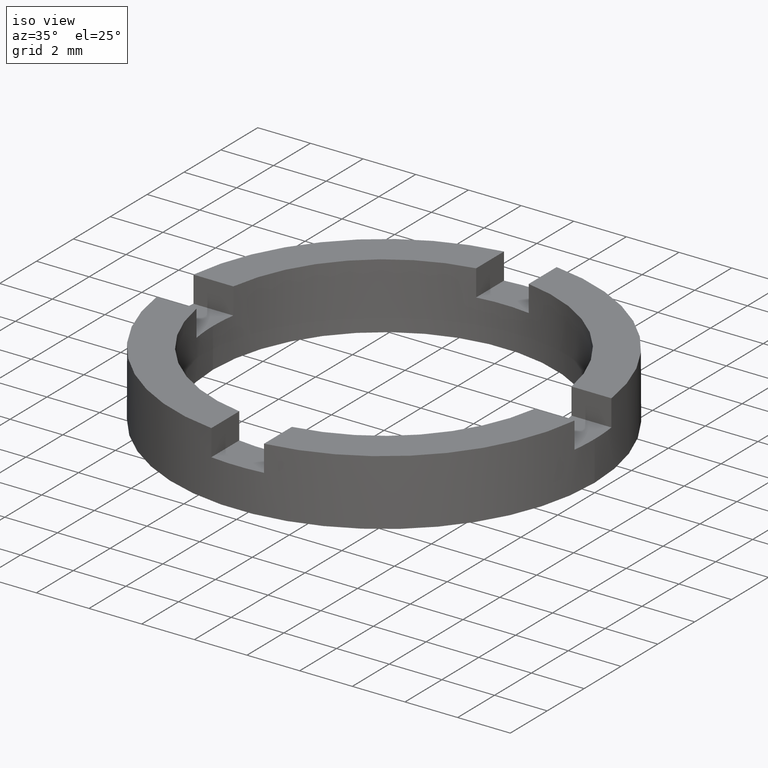
[diagram: clean part render]
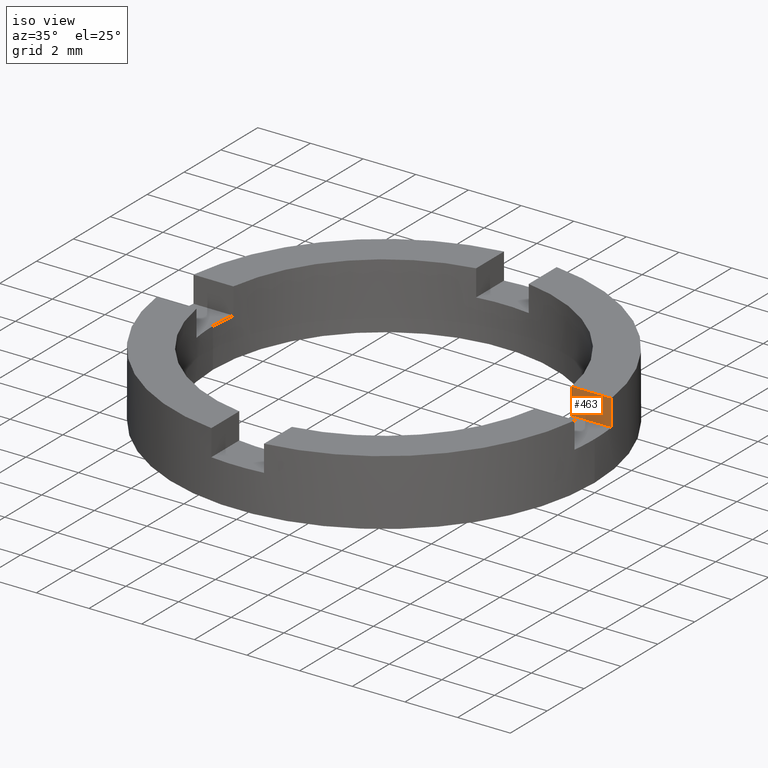
[diagram: same view with one face highlighted and labeled with its STEP entity id]
A machine part, iso view. The second image highlights one B-rep face of the part: STEP entity #463.
In plain terms, the highlighted planar face has unit normal (-0, -1, 0).
Its self-contained STEP definition (entity closure, byte-faithful):
#35 = EDGE_CURVE ( 'NONE', #771, #552, #106, .T. ) ;
#56 = CARTESIAN_POINT ( 'NONE',  ( 3.740497495074986353E-15, 0.9999999999999988898, 1.500000000000000000 ) ) ;
#57 = EDGE_CURVE ( 'NONE', #511, #555, #101, .T. ) ;
#85 = ORIENTED_EDGE ( 'NONE', *, *, #35, .T. ) ;
#92 = VECTOR ( 'NONE', #345, 1000.000000000000000 ) ;
#96 = DIRECTION ( 'NONE',  ( 1.000000000000000000, -3.740497495074990297E-15, 0.000000000000000000 ) ) ;
#101 = LINE ( 'NONE', #190, #103 ) ;
#103 = VECTOR ( 'NONE', #625, 1000.000000000000000 ) ;
#106 = LINE ( 'NONE', #563, #92 ) ;
#139 = CARTESIAN_POINT ( 'NONE',  ( 7.937253933193775701, 0.9999999999999692468, 2.500000000000000000 ) ) ;
#180 = AXIS2_PLACEMENT_3D ( 'NONE', #56, #725, #96 ) ;
#181 = CARTESIAN_POINT ( 'NONE',  ( 6.422616289332569117, 0.9999999999999749090, 1.500000000000000000 ) ) ;
#190 = CARTESIAN_POINT ( 'NONE',  ( 6.422616289332569117, 0.9999999999999749090, 1.500000000000000000 ) ) ;
#254 = EDGE_LOOP ( 'NONE', ( #512, #766, #480, #85 ) ) ;
#260 = EDGE_CURVE ( 'NONE', #555, #552, #668, .T. ) ;
#264 = CARTESIAN_POINT ( 'NONE',  ( 7.937253933193775701, 0.9999999999999692468, 1.500000000000000000 ) ) ;
#272 = EDGE_CURVE ( 'NONE', #511, #771, #407, .T. ) ;
#345 = DIRECTION ( 'NONE',  ( -0.000000000000000000, -0.000000000000000000, 1.000000000000000000 ) ) ;
#398 = VECTOR ( 'NONE', #612, 1000.000000000000000 ) ;
#407 = LINE ( 'NONE', #697, #666 ) ;
#463 = ADVANCED_FACE ( 'NONE', ( #676 ), #588, .T. ) ;
#480 = ORIENTED_EDGE ( 'NONE', *, *, #272, .T. ) ;
#511 = VERTEX_POINT ( 'NONE', #181 ) ;
#512 = ORIENTED_EDGE ( 'NONE', *, *, #260, .F. ) ;
#552 = VERTEX_POINT ( 'NONE', #139 ) ;
#555 = VERTEX_POINT ( 'NONE', #685 ) ;
#563 = CARTESIAN_POINT ( 'NONE',  ( 7.937253933193775701, 0.9999999999999692468, 1.500000000000000000 ) ) ;
#576 = CARTESIAN_POINT ( 'NONE',  ( 3.740497495074986353E-15, 0.9999999999999988898, 2.500000000000000000 ) ) ;
#588 = PLANE ( 'NONE',  #180 ) ;
#612 = DIRECTION ( 'NONE',  ( 1.000000000000000000, -3.740497495074990297E-15, 0.000000000000000000 ) ) ;
#625 = DIRECTION ( 'NONE',  ( -0.000000000000000000, -0.000000000000000000, 1.000000000000000000 ) ) ;
#666 = VECTOR ( 'NONE', #763, 1000.000000000000000 ) ;
#668 = LINE ( 'NONE', #576, #398 ) ;
#676 = FACE_OUTER_BOUND ( 'NONE', #254, .T. ) ;
#685 = CARTESIAN_POINT ( 'NONE',  ( 6.422616289332569117, 0.9999999999999749090, 2.500000000000000000 ) ) ;
#697 = CARTESIAN_POINT ( 'NONE',  ( 3.740497495074986353E-15, 0.9999999999999988898, 1.500000000000000000 ) ) ;
#725 = DIRECTION ( 'NONE',  ( -3.740497495074990297E-15, -1.000000000000000000, 0.000000000000000000 ) ) ;
#763 = DIRECTION ( 'NONE',  ( 1.000000000000000000, -3.740497495074990297E-15, 0.000000000000000000 ) ) ;
#766 = ORIENTED_EDGE ( 'NONE', *, *, #57, .F. ) ;
#771 = VERTEX_POINT ( 'NONE', #264 ) ;